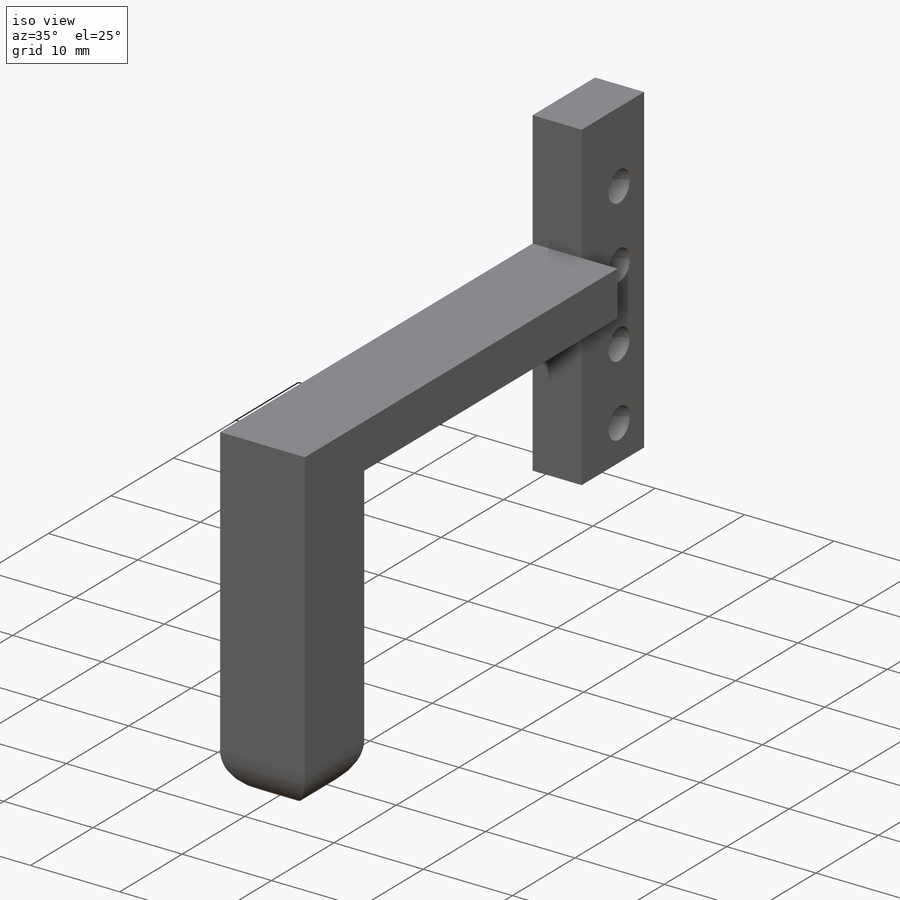
[diagram: iso view]
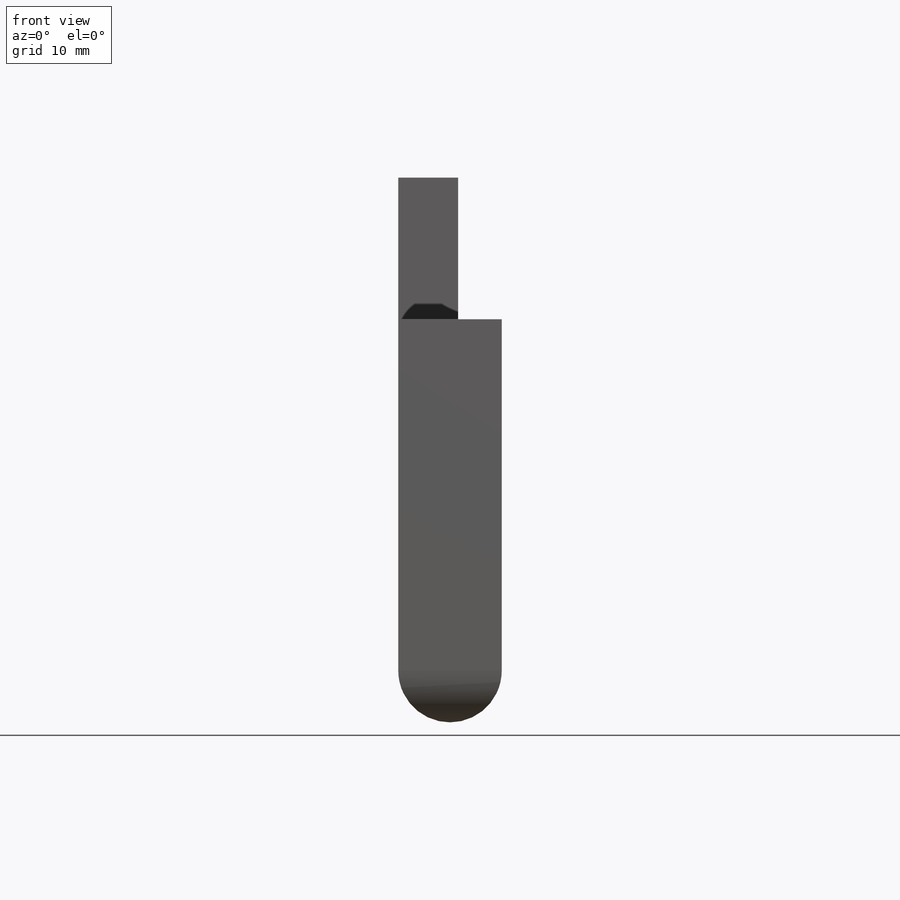
[diagram: front view]
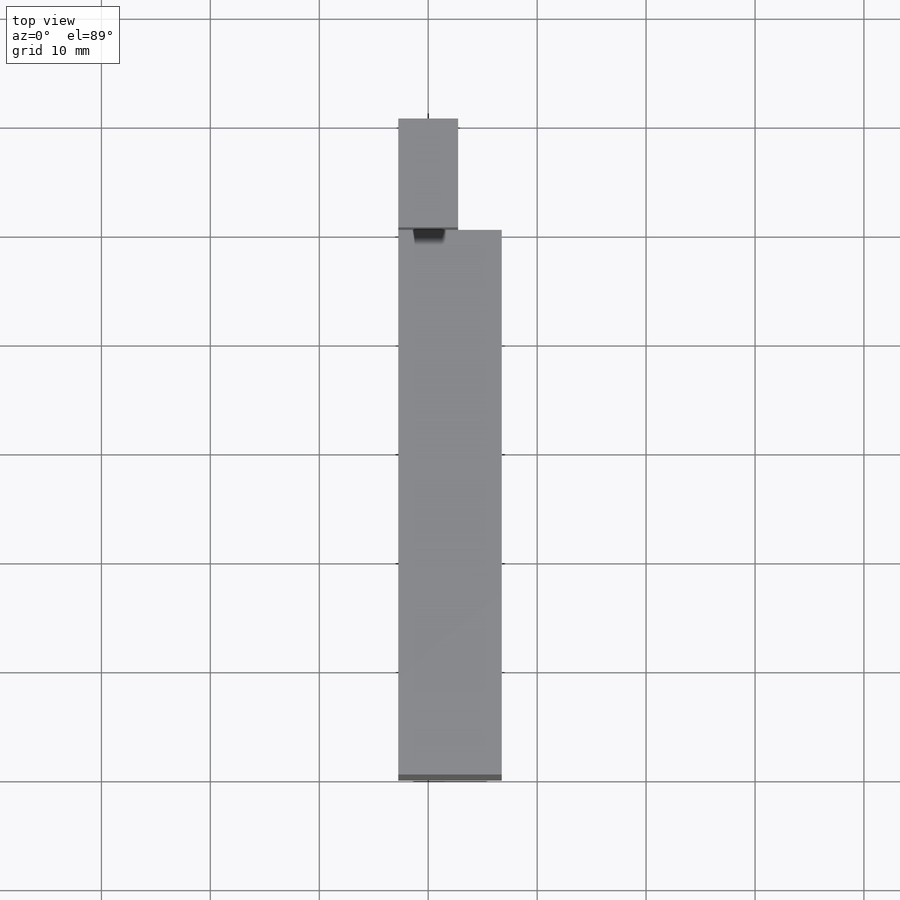
[diagram: top view]
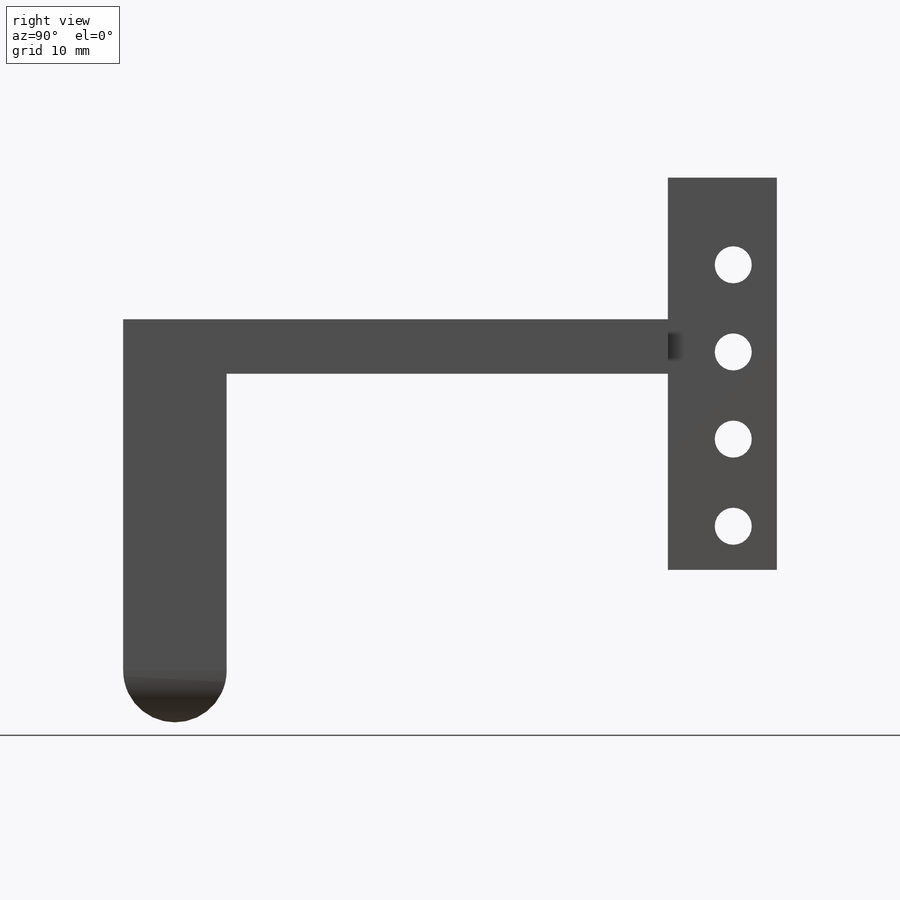
[diagram: right view]
SOLIDWORKS PART (.sldprt)
format: sldprt  version: not decoded by parser v0  size: 230,400 bytes
history: native  units: mm
features: sketch x5, plane x3, extrude x3, cut_extrude x2, material x1, fillet x1 (+10 scaffold rows collapsed)
feature tree (25):
  scaffold x10  (default folders/planes/origin — collapsed)
  material  "Matériau <non spécifié>"
  plane  "Plan de face"
  plane  "Plan de dessus"
  plane  "Plan de droite"
  sketch  "Esquisse1"  dims[D1=5.5mm D2=36.0mm]
  extrude  "Boss.-Extru.1"  Depth=10mm
  sketch  "Esquisse2"  dims[c1.D2=~0.994687mm c1.D1=6.0mm c2.D2=8.0mm c2.D3=4.0]
  cut_extrude  "Enlèv. mat.-Extru.1"  Depth=4mm
  sketch  "Esquisse3"  dims[D2=~2.161041mm D1=4.0]
  cut_extrude  "Enlèv. mat.-Extru.2"  Depth=3.5mm
  sketch  "Esquisse4"  dims[D1=9.5mm D2=5.0mm D3=18.0mm]
  extrude  "Boss.-Extru.2"  Depth=50mm
  sketch  "Esquisse5"  dims[D1=9.5mm]
  extrude  "Boss.-Extru.3"  Depth=32mm
  fillet  "Congé1"  Radius=4.75mm
decode coverage: 11 of 11 modeling features carry decoded parameters
note: ~ marks probable driven/reference dimensions
note: suppression state not decoded; provenance and decode notes live in map.json
